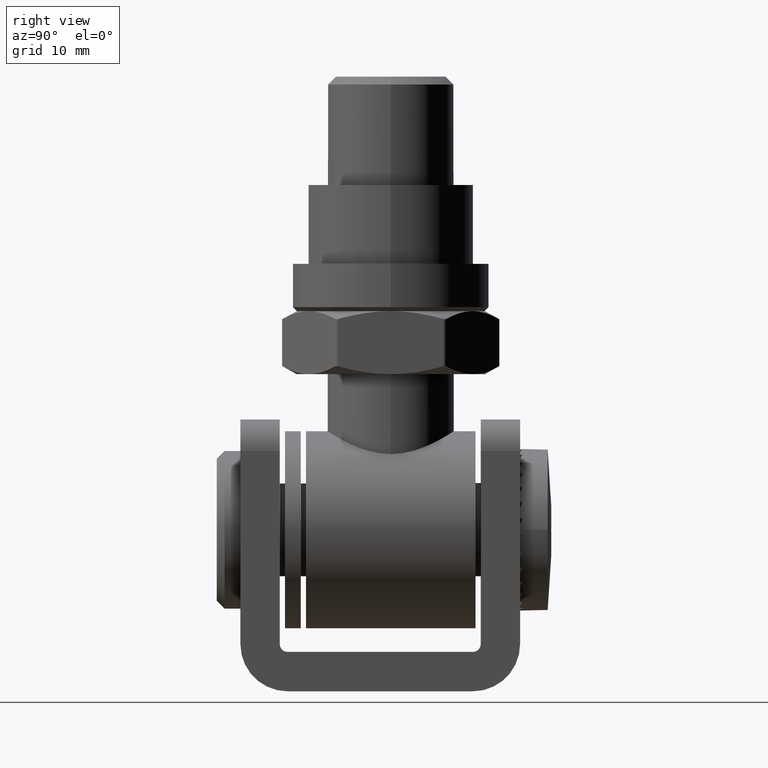
[diagram: clean part render]
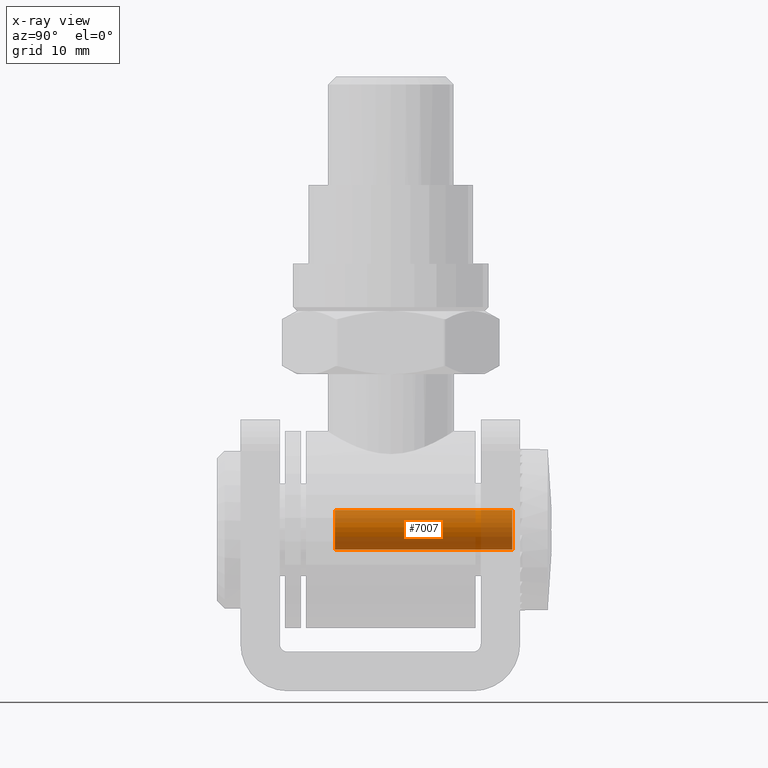
[diagram: x-ray — body ghosted, one internal face saturated and labeled with its STEP entity id]
A machine part, right view, then the same camera in x-ray: the body is ghosted and one INTERNAL B-rep face — a face not visible from any outside direction — is saturated and labeled: STEP entity #7007.
In plain terms, the highlighted cylindrical surface (bore or boss wall) has radius 2.5 mm, axis along (0, 1, 0).
Its self-contained STEP definition (entity closure, byte-faithful):
#6 = VERTEX_POINT ( 'NONE', #20938 ) ;
#654 = FACE_OUTER_BOUND ( 'NONE', #3837, .T. ) ;
#2489 = AXIS2_PLACEMENT_3D ( 'NONE', #18689, #10067, #5108 ) ;
#3293 = DIRECTION ( 'NONE',  ( 0.000000000000000000, 0.000000000000000000, -1.000000000000000000 ) ) ;
#3837 = EDGE_LOOP ( 'NONE', ( #17024 ) ) ;
#3976 = VERTEX_POINT ( 'NONE', #7266 ) ;
#5108 = DIRECTION ( 'NONE',  ( 0.000000000000000000, 0.000000000000000000, 1.000000000000000000 ) ) ;
#6899 = CARTESIAN_POINT ( 'NONE',  ( 0.000000000000000000, 37.50000000000000711, 0.000000000000000000 ) ) ;
#7007 = ADVANCED_FACE ( 'NONE', ( #654, #15226 ), #19189, .F. ) ;
#7266 = CARTESIAN_POINT ( 'NONE',  ( 0.000000000000000000, 37.50000000000000711, -2.499999999999996003 ) ) ;
#7416 = EDGE_LOOP ( 'NONE', ( #20561 ) ) ;
#9328 = AXIS2_PLACEMENT_3D ( 'NONE', #6899, #13448, #3293 ) ;
#10006 = EDGE_CURVE ( 'NONE', #6, #6, #10886, .T. ) ;
#10067 = DIRECTION ( 'NONE',  ( -2.238638746600059466E-47, 1.000000000000000000, -1.829012179443878305E-31 ) ) ;
#10886 = CIRCLE ( 'NONE', #17919, 2.499999999999995115 ) ;
#11435 = DIRECTION ( 'NONE',  ( -2.238638746600059466E-47, 1.000000000000000000, -1.829012179443878305E-31 ) ) ;
#13448 = DIRECTION ( 'NONE',  ( -2.238638746600059466E-47, 1.000000000000000000, -1.829012179443878305E-31 ) ) ;
#14849 = CIRCLE ( 'NONE', #9328, 2.499999999999996003 ) ;
#15226 = FACE_OUTER_BOUND ( 'NONE', #7416, .T. ) ;
#16753 = DIRECTION ( 'NONE',  ( 0.000000000000000000, 0.000000000000000000, 1.000000000000000000 ) ) ;
#17024 = ORIENTED_EDGE ( 'NONE', *, *, #22008, .T. ) ;
#17919 = AXIS2_PLACEMENT_3D ( 'NONE', #18314, #11435, #16753 ) ;
#18314 = CARTESIAN_POINT ( 'NONE',  ( 3.081487911019577365E-30, 15.00000000000000000, 0.000000000000000000 ) ) ;
#18689 = CARTESIAN_POINT ( 'NONE',  ( 0.000000000000000000, 38.00000000000000711, 0.000000000000000000 ) ) ;
#19189 = CYLINDRICAL_SURFACE ( 'NONE', #2489, 2.499999999999996003 ) ;
#20561 = ORIENTED_EDGE ( 'NONE', *, *, #10006, .F. ) ;
#20938 = CARTESIAN_POINT ( 'NONE',  ( 3.081487911019577365E-30, 15.00000000000000000, 2.499999999999995115 ) ) ;
#22008 = EDGE_CURVE ( 'NONE', #3976, #3976, #14849, .T. ) ;